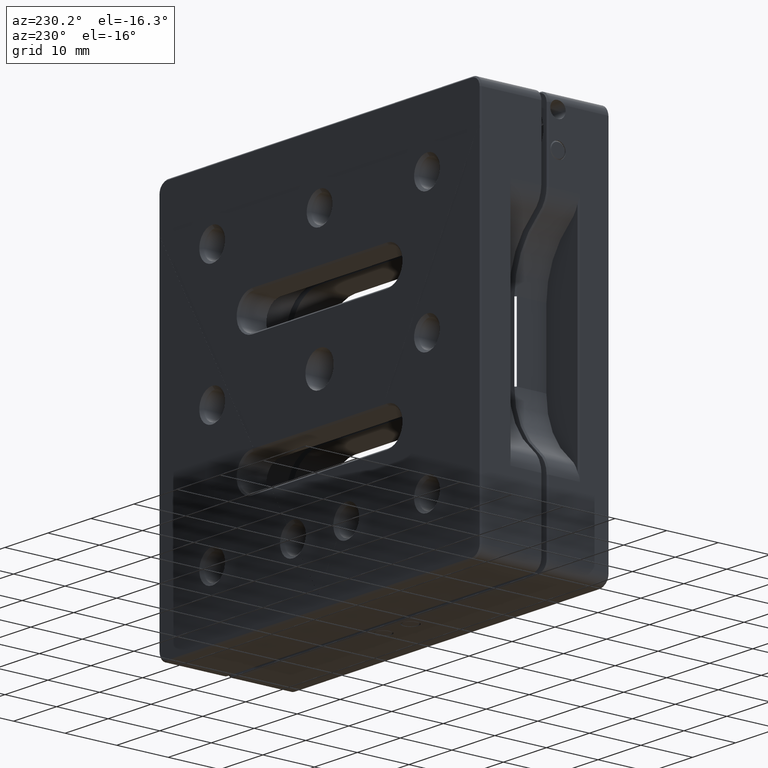
[diagram: clean part render]
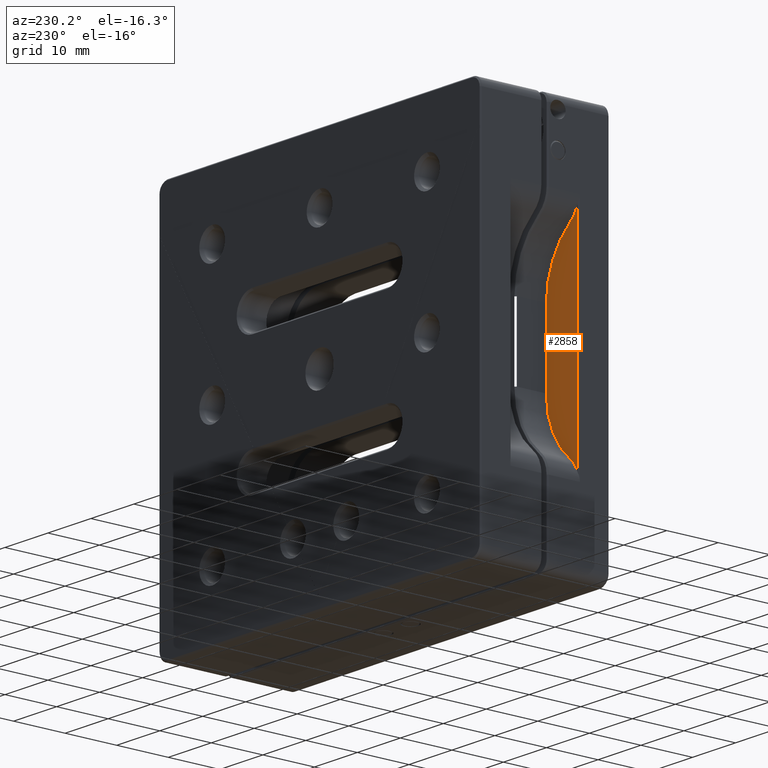
[diagram: same view with one face highlighted and labeled with its STEP entity id]
A machine part, auxiliary view. The second image highlights one B-rep face of the part: STEP entity #2858.
In plain terms, the highlighted planar face has unit normal (0, -1, 0).
Its self-contained STEP definition (entity closure, byte-faithful):
#5 = DIRECTION ( 'NONE',  ( -0.0000000000000000000, -1.000000000000000000, 0.0000000000000000000 ) ) ;
#130 = VECTOR ( 'NONE', #8527, 1000.000000000000000 ) ;
#247 = FACE_OUTER_BOUND ( 'NONE', #3058, .T. ) ;
#306 = EDGE_CURVE ( 'NONE', #4255, #3889, #6602, .T. ) ;
#401 = EDGE_CURVE ( 'NONE', #3012, #2701, #8738, .T. ) ;
#672 = EDGE_CURVE ( 'NONE', #7548, #3012, #3934, .T. ) ;
#767 = CARTESIAN_POINT ( 'NONE',  ( -32.50000000000000000, 0.0000000000000000000, -22.37042614893941206 ) ) ;
#1273 = ORIENTED_EDGE ( 'NONE', *, *, #4372, .T. ) ;
#1757 = DIRECTION ( 'NONE',  ( 0.0000000000000000000, 0.0000000000000000000, -1.000000000000000000 ) ) ;
#1820 = CIRCLE ( 'NONE', #4409, 14.50000000000000888 ) ;
#1898 = PLANE ( 'NONE',  #8827 ) ;
#1972 = LINE ( 'NONE', #5067, #130 ) ;
#1998 = CARTESIAN_POINT ( 'NONE',  ( -32.50000000000000000, 0.0000000000000000000, 22.37042614893940851 ) ) ;
#2207 = AXIS2_PLACEMENT_3D ( 'NONE', #3378, #3438, #8842 ) ;
#2409 = DIRECTION ( 'NONE',  ( 0.0000000000000000000, 0.0000000000000000000, -1.000000000000000000 ) ) ;
#2609 = DIRECTION ( 'NONE',  ( 0.0000000000000000000, -0.0000000000000000000, -1.000000000000000000 ) ) ;
#2632 = CARTESIAN_POINT ( 'NONE',  ( -37.24999999999999289, 0.0000000000000000000, 20.80917664933977917 ) ) ;
#2691 = CARTESIAN_POINT ( 'NONE',  ( -37.25000000000000000, 0.0000000000000000000, -20.80917664933981115 ) ) ;
#2701 = VERTEX_POINT ( 'NONE', #7903 ) ;
#2858 = ADVANCED_FACE ( 'NONE', ( #247 ), #1898, .F. ) ;
#3012 = VERTEX_POINT ( 'NONE', #5548 ) ;
#3017 = CIRCLE ( 'NONE', #8432, 5.000000000000000888 ) ;
#3058 = EDGE_LOOP ( 'NONE', ( #6859, #6054, #1273, #8003, #6371, #6323 ) ) ;
#3193 = EDGE_CURVE ( 'NONE', #3889, #3911, #1972, .T. ) ;
#3342 = CARTESIAN_POINT ( 'NONE',  ( -44.50000000000000000, 0.0000000000000000000, -7.000000000000000000 ) ) ;
#3378 = CARTESIAN_POINT ( 'NONE',  ( -44.50000000000000000, 0.0000000000000000000, 7.000000000000000000 ) ) ;
#3438 = DIRECTION ( 'NONE',  ( 0.0000000000000000000, 1.000000000000000000, -0.0000000000000000000 ) ) ;
#3704 = DIRECTION ( 'NONE',  ( -0.0000000000000000000, -1.000000000000000000, 0.0000000000000000000 ) ) ;
#3889 = VERTEX_POINT ( 'NONE', #2691 ) ;
#3911 = VERTEX_POINT ( 'NONE', #2632 ) ;
#3934 = CIRCLE ( 'NONE', #2207, 14.50000000000000711 ) ;
#4179 = AXIS2_PLACEMENT_3D ( 'NONE', #767, #3704, #2409 ) ;
#4255 = VERTEX_POINT ( 'NONE', #5186 ) ;
#4372 = EDGE_CURVE ( 'NONE', #3911, #7548, #3017, .T. ) ;
#4409 = AXIS2_PLACEMENT_3D ( 'NONE', #8262, #7847, #1757 ) ;
#4563 = DIRECTION ( 'NONE',  ( -0.0000000000000000000, -0.0000000000000000000, -1.000000000000000000 ) ) ;
#4712 = DIRECTION ( 'NONE',  ( 0.0000000000000000000, 0.0000000000000000000, -1.000000000000000000 ) ) ;
#5067 = CARTESIAN_POINT ( 'NONE',  ( -37.25000000000000000, 0.0000000000000000000, -7.000000000000001776 ) ) ;
#5186 = CARTESIAN_POINT ( 'NONE',  ( -35.57692307692307310, 0.0000000000000000000, -18.42929123895494570 ) ) ;
#5548 = CARTESIAN_POINT ( 'NONE',  ( -29.99999999999999289, 0.0000000000000000000, 6.999999999999999112 ) ) ;
#5809 = CARTESIAN_POINT ( 'NONE',  ( -35.57692307692307310, 0.0000000000000000000, 18.42929123895494570 ) ) ;
#6054 = ORIENTED_EDGE ( 'NONE', *, *, #3193, .T. ) ;
#6323 = ORIENTED_EDGE ( 'NONE', *, *, #7957, .T. ) ;
#6371 = ORIENTED_EDGE ( 'NONE', *, *, #401, .T. ) ;
#6602 = CIRCLE ( 'NONE', #4179, 5.000000000000000888 ) ;
#6859 = ORIENTED_EDGE ( 'NONE', *, *, #306, .T. ) ;
#6912 = VECTOR ( 'NONE', #4563, 1000.000000000000000 ) ;
#7548 = VERTEX_POINT ( 'NONE', #5809 ) ;
#7847 = DIRECTION ( 'NONE',  ( 0.0000000000000000000, 1.000000000000000000, -0.0000000000000000000 ) ) ;
#7903 = CARTESIAN_POINT ( 'NONE',  ( -29.99999999999998934, 0.0000000000000000000, -6.999999999999998224 ) ) ;
#7957 = EDGE_CURVE ( 'NONE', #2701, #4255, #1820, .T. ) ;
#8003 = ORIENTED_EDGE ( 'NONE', *, *, #672, .T. ) ;
#8262 = CARTESIAN_POINT ( 'NONE',  ( -44.50000000000000000, 0.0000000000000000000, -7.000000000000000000 ) ) ;
#8432 = AXIS2_PLACEMENT_3D ( 'NONE', #1998, #5, #4712 ) ;
#8527 = DIRECTION ( 'NONE',  ( 1.850371707708594070E-16, 0.0000000000000000000, 1.000000000000000000 ) ) ;
#8601 = CARTESIAN_POINT ( 'NONE',  ( -29.99999999999998934, 0.0000000000000000000, -6.999999999999998224 ) ) ;
#8738 = LINE ( 'NONE', #8601, #6912 ) ;
#8801 = DIRECTION ( 'NONE',  ( 0.0000000000000000000, -1.000000000000000000, 0.0000000000000000000 ) ) ;
#8827 = AXIS2_PLACEMENT_3D ( 'NONE', #3342, #8801, #2609 ) ;
#8842 = DIRECTION ( 'NONE',  ( 0.0000000000000000000, 0.0000000000000000000, -1.000000000000000000 ) ) ;